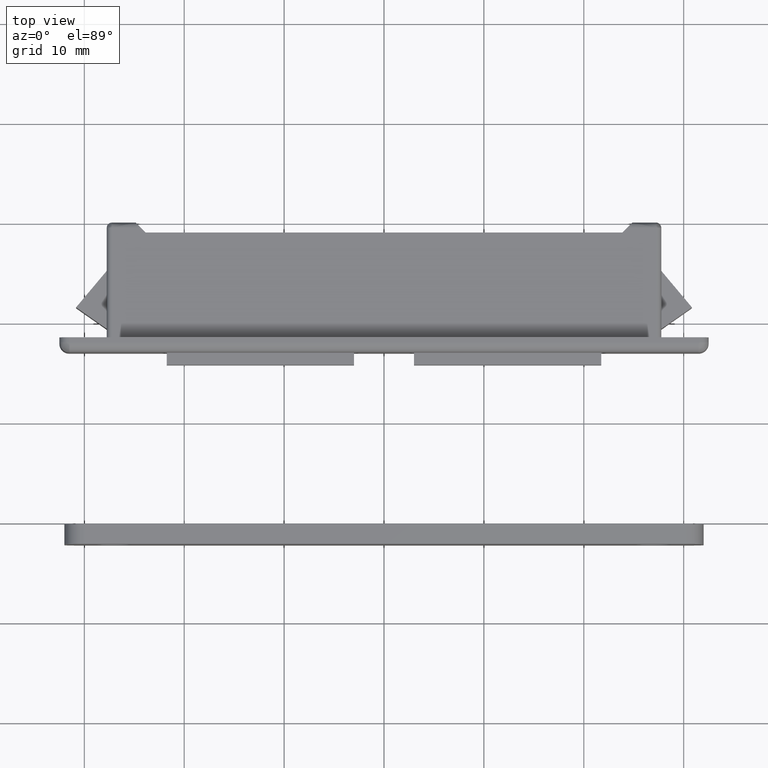
[diagram: clean part render]
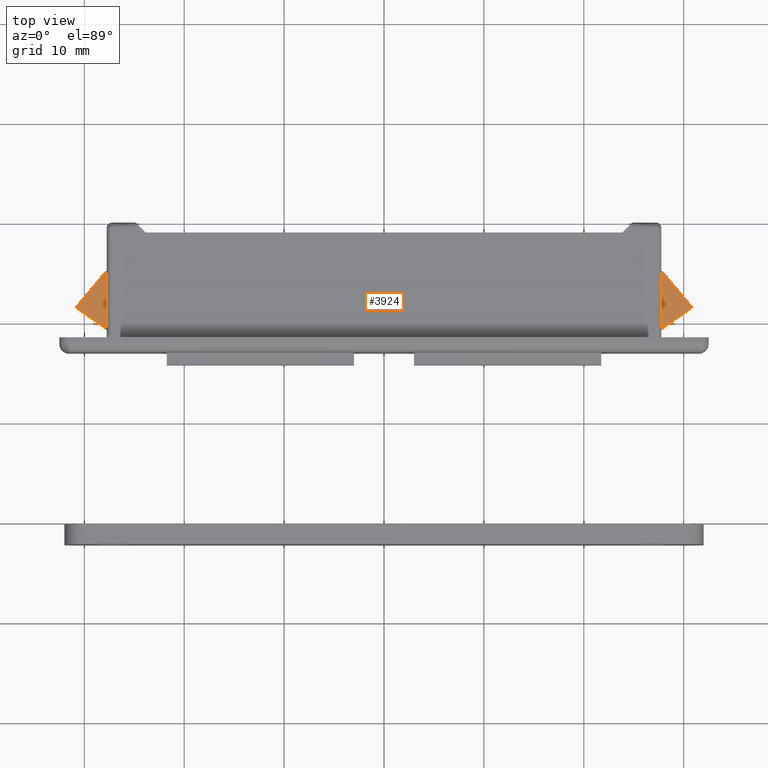
[diagram: same view with one face highlighted and labeled with its STEP entity id]
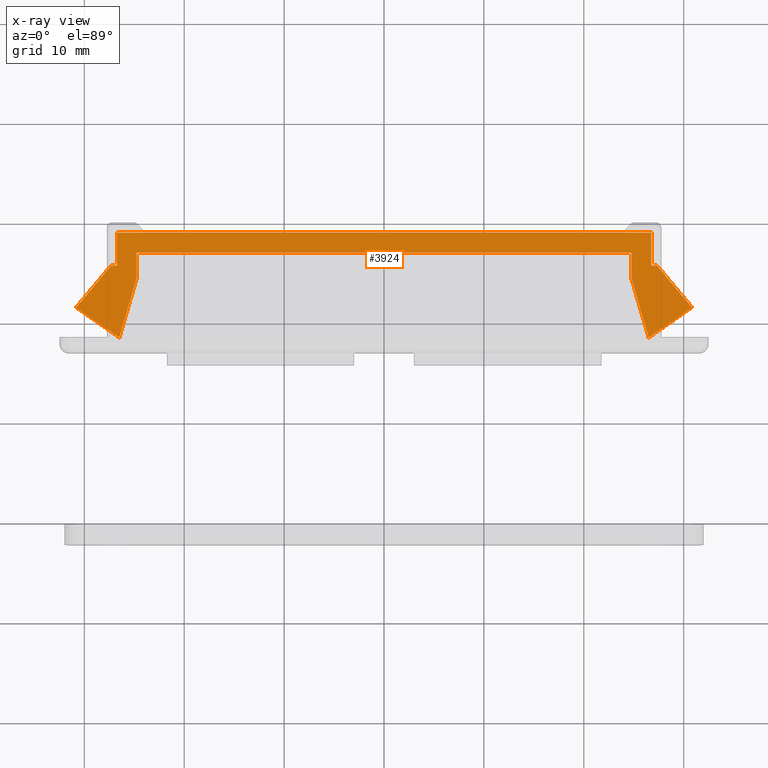
[diagram: x-ray of the same camera — body ghosted, the highlighted face saturated]
A machine part, top view. The second image highlights one B-rep face of the part: STEP entity #3924.
The next image is the same camera in x-ray: the body ghosted, the highlighted face saturated — about 0% of this face is hidden behind the body in this view.
In plain terms, the highlighted face is a freeform B-spline surface patch.
Its self-contained STEP definition (entity closure, byte-faithful):
#3819=CARTESIAN_POINT('',(-33.904193874004577,-0.475525020351037,3.0));
#3820=CARTESIAN_POINT('',(33.904194976385199,-0.475525020351037,3.0));
#3821=CARTESIAN_POINT('',(-33.904193874004577,-12.024475261280910,3.0));
#3822=CARTESIAN_POINT('',(33.904194976385199,-12.024475261280910,3.0));
#3823=B_SPLINE_SURFACE_WITH_KNOTS('',1,1,((#3819,#3821),(#3820,#3822)),.UNSPECIFIED.,.F.,.F.,.U.,(2,2),(2,2),(0.0,67.808388850389775),(0.0,11.548950240929869),.UNSPECIFIED.);
#3824=CARTESIAN_POINT('',(-26.750004000000001,-4.298599000000110,3.0));
#3825=VERTEX_POINT('',#3824);
#3826=CARTESIAN_POINT('',(-26.750004000000001,-1.0,3.0));
#3827=VERTEX_POINT('',#3826);
#3828=CARTESIAN_POINT('',(-26.750004000000001,-4.298599000000110,3.0));
#3829=CARTESIAN_POINT('',(-26.750004000000001,-1.0,3.0));
#3830=QUASI_UNIFORM_CURVE('',1,(#3828,#3829),.UNSPECIFIED.,.F.,.U.);
#3831=EDGE_CURVE('',#3825,#3827,#3830,.T.);
#3832=ORIENTED_EDGE('',*,*,#3831,.F.);
#3833=CARTESIAN_POINT('',(-27.323241415170301,-4.298599000000110,3.0));
#3834=VERTEX_POINT('',#3833);
#3835=CARTESIAN_POINT('',(-27.323241415170301,-4.298599000000110,3.0));
#3836=CARTESIAN_POINT('',(-26.750004000000001,-4.298599000000110,3.0));
#3837=QUASI_UNIFORM_CURVE('',1,(#3835,#3836),.UNSPECIFIED.,.F.,.U.);
#3838=EDGE_CURVE('',#3834,#3825,#3837,.T.);
#3839=ORIENTED_EDGE('',*,*,#3838,.F.);
#3840=CARTESIAN_POINT('',(-30.824796267634500,-8.471696510746739,3.0));
#3841=VERTEX_POINT('',#3840);
#3842=CARTESIAN_POINT('',(-30.824796267634500,-8.471696510746739,3.0));
#3843=CARTESIAN_POINT('',(-27.323241415170301,-4.298599000000110,3.0));
#3844=QUASI_UNIFORM_CURVE('',1,(#3842,#3843),.UNSPECIFIED.,.F.,.U.);
#3845=EDGE_CURVE('',#3841,#3834,#3844,.T.);
#3846=ORIENTED_EDGE('',*,*,#3845,.F.);
#3847=CARTESIAN_POINT('',(-26.499921157950450,-11.500000000000000,3.0));
#3848=VERTEX_POINT('',#3847);
#3849=CARTESIAN_POINT('',(-26.499921157950450,-11.500000000000000,3.0));
#3850=CARTESIAN_POINT('',(-30.824796267634500,-8.471696510746739,3.0));
#3851=QUASI_UNIFORM_CURVE('',1,(#3849,#3850),.UNSPECIFIED.,.F.,.U.);
#3852=EDGE_CURVE('',#3848,#3841,#3851,.T.);
#3853=ORIENTED_EDGE('',*,*,#3852,.F.);
#3854=CARTESIAN_POINT('',(-24.750004000000001,-5.527314883728931,3.0));
#3855=VERTEX_POINT('',#3854);
#3856=CARTESIAN_POINT('',(-24.750004000000001,-5.527314883728931,3.0));
#3857=CARTESIAN_POINT('',(-26.499921157950450,-11.500000000000000,3.0));
#3858=QUASI_UNIFORM_CURVE('',1,(#3856,#3857),.UNSPECIFIED.,.F.,.U.);
#3859=EDGE_CURVE('',#3855,#3848,#3858,.T.);
#3860=ORIENTED_EDGE('',*,*,#3859,.F.);
#3861=CARTESIAN_POINT('',(-24.750004000000001,-3.0,3.0));
#3862=VERTEX_POINT('',#3861);
#3863=CARTESIAN_POINT('',(-24.750004000000001,-3.0,3.0));
#3864=CARTESIAN_POINT('',(-24.750004000000001,-5.527314883728931,3.0));
#3865=QUASI_UNIFORM_CURVE('',1,(#3863,#3864),.UNSPECIFIED.,.F.,.U.);
#3866=EDGE_CURVE('',#3862,#3855,#3865,.T.);
#3867=ORIENTED_EDGE('',*,*,#3866,.F.);
#3868=CARTESIAN_POINT('',(24.750004000000001,-3.0,3.0));
#3869=VERTEX_POINT('',#3868);
#3870=CARTESIAN_POINT('',(24.750004000000001,-3.0,3.0));
#3871=CARTESIAN_POINT('',(-24.750004000000001,-3.0,3.0));
#3872=QUASI_UNIFORM_CURVE('',1,(#3870,#3871),.UNSPECIFIED.,.F.,.U.);
#3873=EDGE_CURVE('',#3869,#3862,#3872,.T.);
#3874=ORIENTED_EDGE('',*,*,#3873,.F.);
#3875=CARTESIAN_POINT('',(24.750004000000001,-5.527314883728920,3.0));
#3876=VERTEX_POINT('',#3875);
#3877=CARTESIAN_POINT('',(24.750004000000001,-5.527314883728920,3.0));
#3878=CARTESIAN_POINT('',(24.750004000000001,-3.0,3.0));
#3879=QUASI_UNIFORM_CURVE('',1,(#3877,#3878),.UNSPECIFIED.,.F.,.U.);
#3880=EDGE_CURVE('',#3876,#3869,#3879,.T.);
#3881=ORIENTED_EDGE('',*,*,#3880,.F.);
#3882=CARTESIAN_POINT('',(26.499921157950450,-11.500000000000000,3.0));
#3883=VERTEX_POINT('',#3882);
#3884=CARTESIAN_POINT('',(26.499921157950450,-11.500000000000000,3.0));
#3885=CARTESIAN_POINT('',(24.750004000000001,-5.527314883728920,3.0));
#3886=QUASI_UNIFORM_CURVE('',1,(#3884,#3885),.UNSPECIFIED.,.F.,.U.);
#3887=EDGE_CURVE('',#3883,#3876,#3886,.T.);
#3888=ORIENTED_EDGE('',*,*,#3887,.F.);
#3889=CARTESIAN_POINT('',(30.824796267634500,-8.471696510746730,3.0));
#3890=VERTEX_POINT('',#3889);
#3891=CARTESIAN_POINT('',(30.824796267634500,-8.471696510746730,3.0));
#3892=CARTESIAN_POINT('',(26.499921157950450,-11.500000000000000,3.0));
#3893=QUASI_UNIFORM_CURVE('',1,(#3891,#3892),.UNSPECIFIED.,.F.,.U.);
#3894=EDGE_CURVE('',#3890,#3883,#3893,.T.);
#3895=ORIENTED_EDGE('',*,*,#3894,.F.);
#3896=CARTESIAN_POINT('',(27.323241415170301,-4.298599000000110,3.0));
#3897=VERTEX_POINT('',#3896);
#3898=CARTESIAN_POINT('',(27.323241415170301,-4.298599000000110,3.0));
#3899=CARTESIAN_POINT('',(30.824796267634500,-8.471696510746730,3.0));
#3900=QUASI_UNIFORM_CURVE('',1,(#3898,#3899),.UNSPECIFIED.,.F.,.U.);
#3901=EDGE_CURVE('',#3897,#3890,#3900,.T.);
#3902=ORIENTED_EDGE('',*,*,#3901,.F.);
#3903=CARTESIAN_POINT('',(26.750004000000001,-4.298599000000110,3.0));
#3904=VERTEX_POINT('',#3903);
#3905=CARTESIAN_POINT('',(26.750004000000001,-4.298599000000110,3.0));
#3906=CARTESIAN_POINT('',(27.323241415170301,-4.298599000000110,3.0));
#3907=QUASI_UNIFORM_CURVE('',1,(#3905,#3906),.UNSPECIFIED.,.F.,.U.);
#3908=EDGE_CURVE('',#3904,#3897,#3907,.T.);
#3909=ORIENTED_EDGE('',*,*,#3908,.F.);
#3910=CARTESIAN_POINT('',(26.750004000000001,-1.0,3.0));
#3911=VERTEX_POINT('',#3910);
#3912=CARTESIAN_POINT('',(26.750004000000001,-1.0,3.0));
#3913=CARTESIAN_POINT('',(26.750004000000001,-4.298599000000110,3.0));
#3914=QUASI_UNIFORM_CURVE('',1,(#3912,#3913),.UNSPECIFIED.,.F.,.U.);
#3915=EDGE_CURVE('',#3911,#3904,#3914,.T.);
#3916=ORIENTED_EDGE('',*,*,#3915,.F.);
#3917=CARTESIAN_POINT('',(-26.750004000000001,-1.0,3.0));
#3918=CARTESIAN_POINT('',(26.750004000000001,-1.0,3.0));
#3919=QUASI_UNIFORM_CURVE('',1,(#3917,#3918),.UNSPECIFIED.,.F.,.U.);
#3920=EDGE_CURVE('',#3827,#3911,#3919,.T.);
#3921=ORIENTED_EDGE('',*,*,#3920,.F.);
#3922=EDGE_LOOP('',(#3832,#3839,#3846,#3853,#3860,#3867,#3874,#3881,#3888,#3895,#3902,#3909,#3916,#3921));
#3923=FACE_OUTER_BOUND('',#3922,.T.);
#3924=ADVANCED_FACE('',(#3923),#3823,.F.);